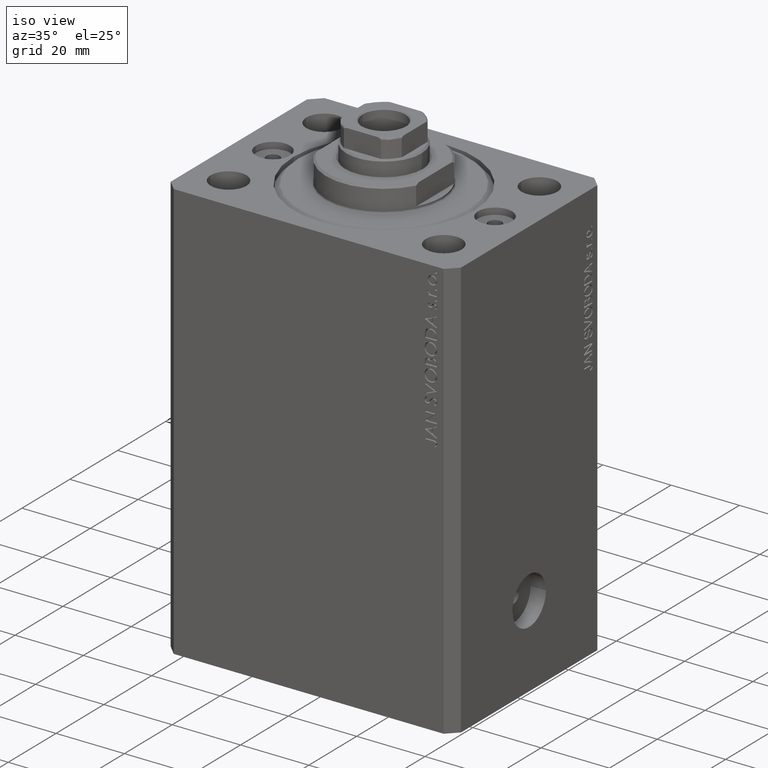
[diagram: clean part render]
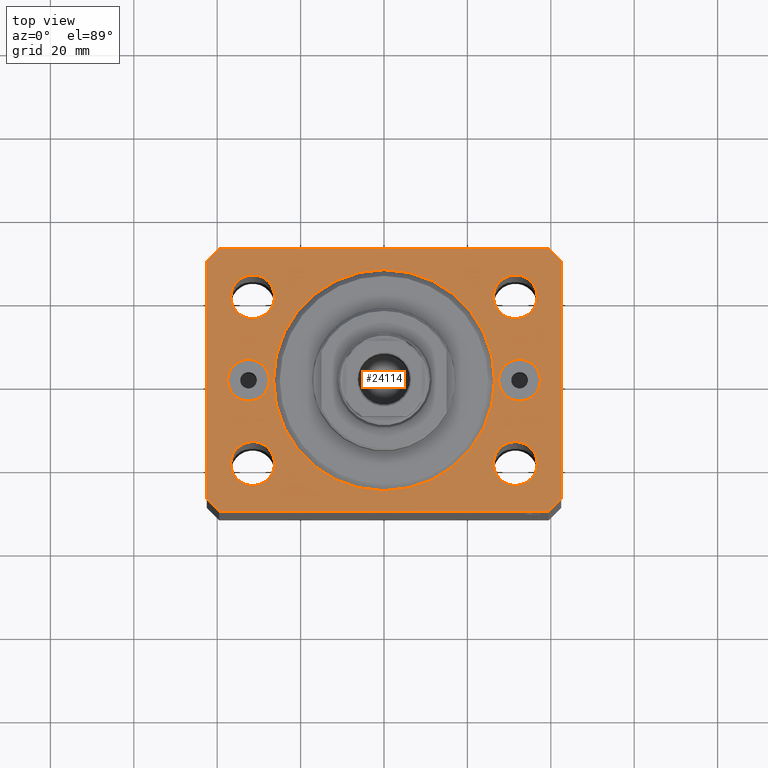
[diagram: tour spotlight — one face highlighted and labeled with its STEP entity id]
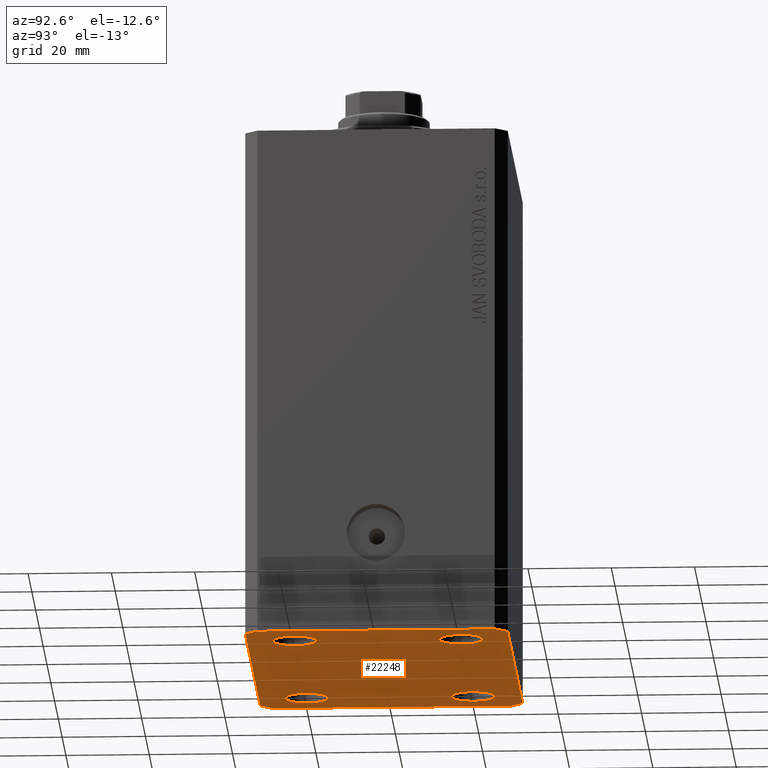
[diagram: tour spotlight — one face highlighted and labeled with its STEP entity id]
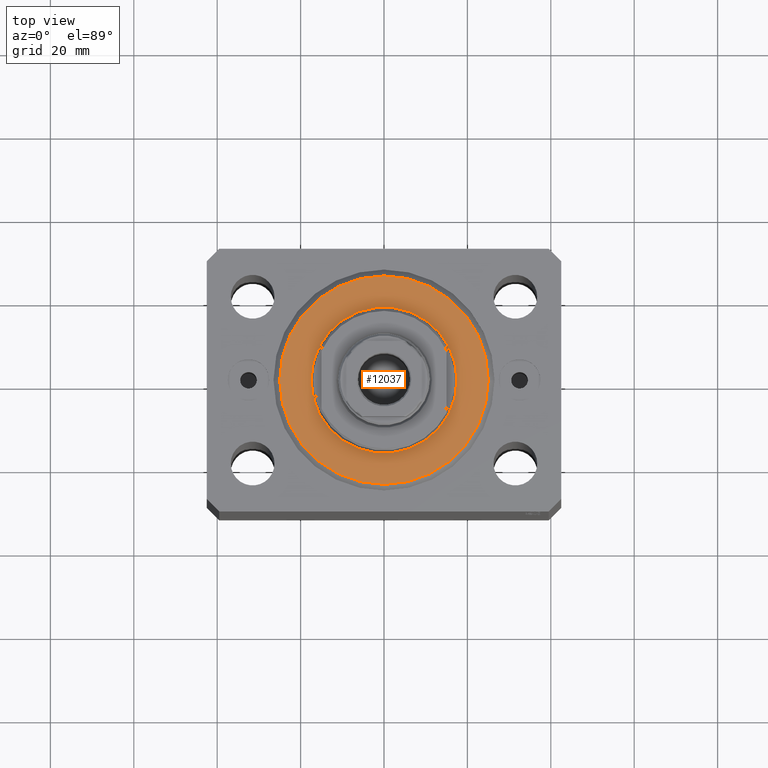
[diagram: tour spotlight — one face highlighted and labeled with its STEP entity id]
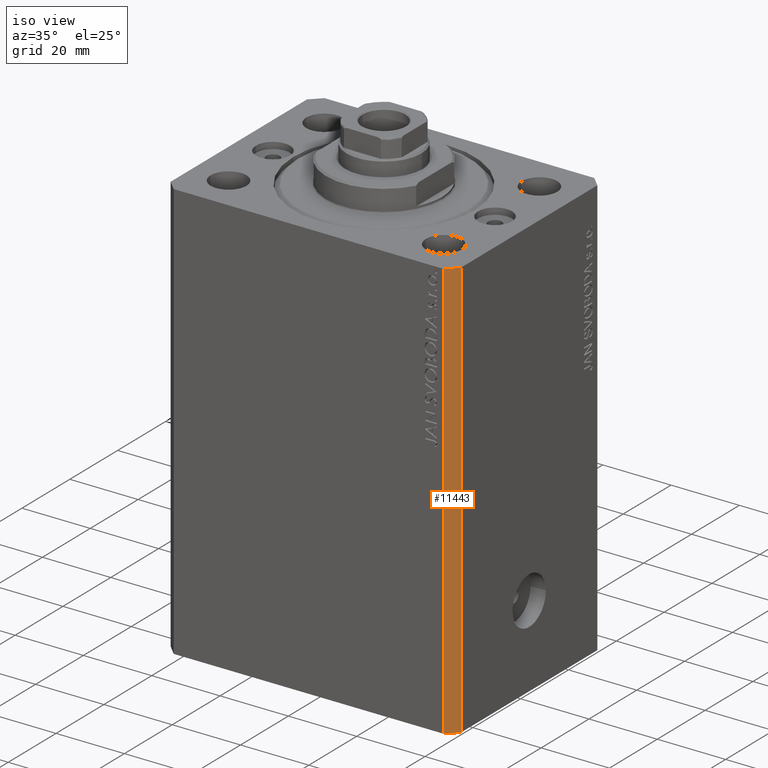
[diagram: tour spotlight — one face highlighted and labeled with its STEP entity id]
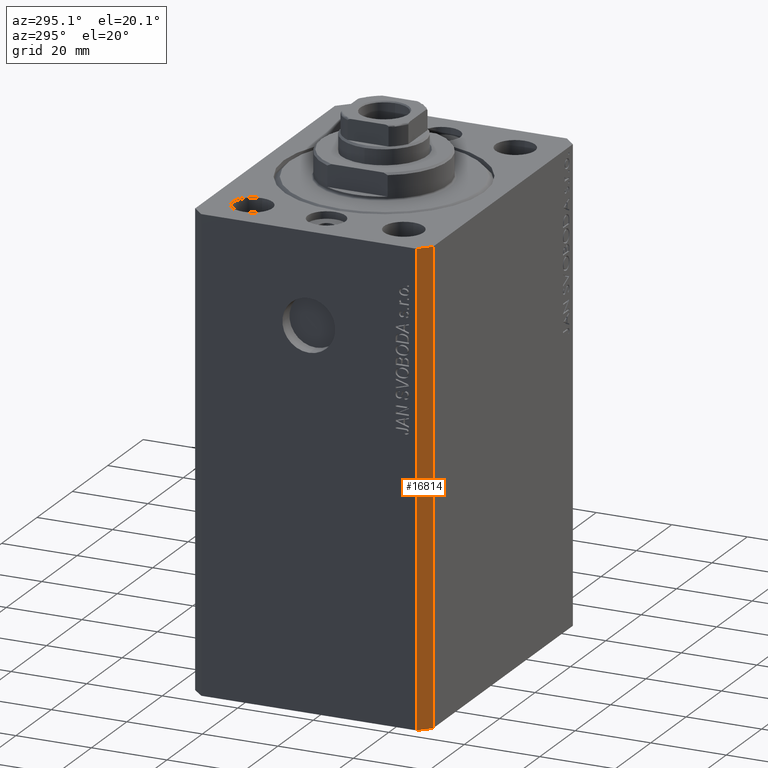
[diagram: tour spotlight — one face highlighted and labeled with its STEP entity id]
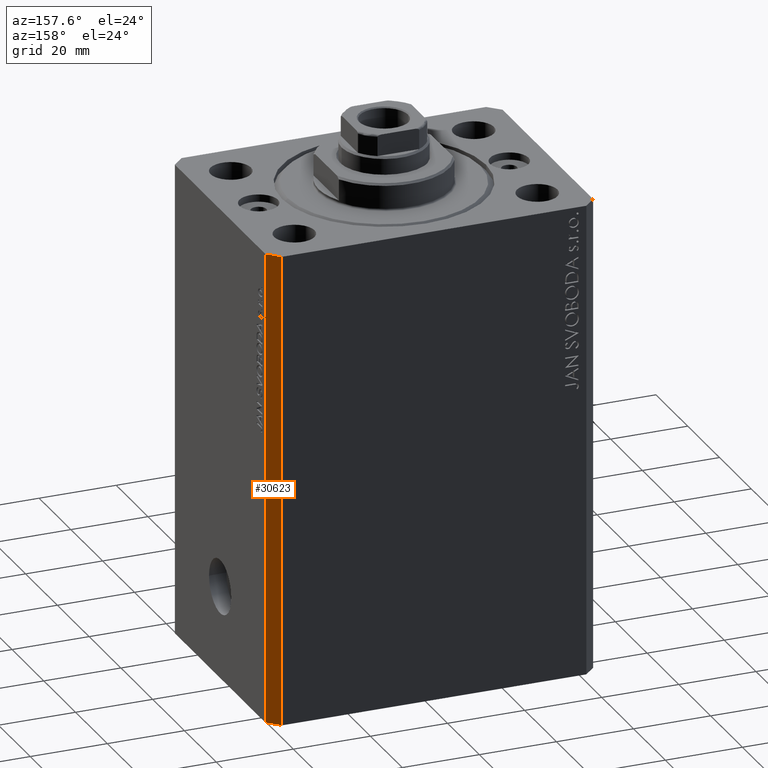
[diagram: tour spotlight — one face highlighted and labeled with its STEP entity id]
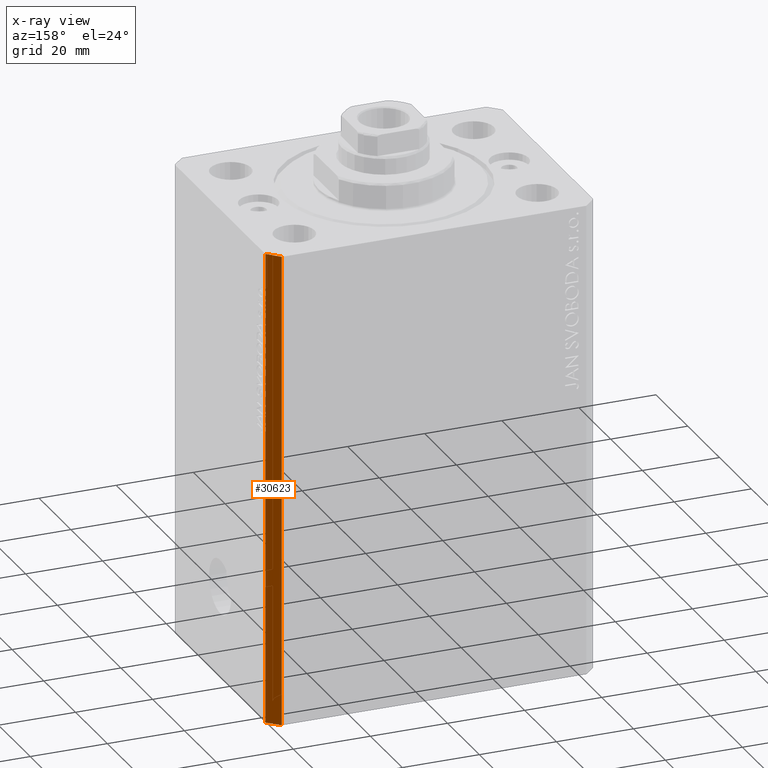
[diagram: x-ray of the same camera — body ghosted, this tour face saturated]
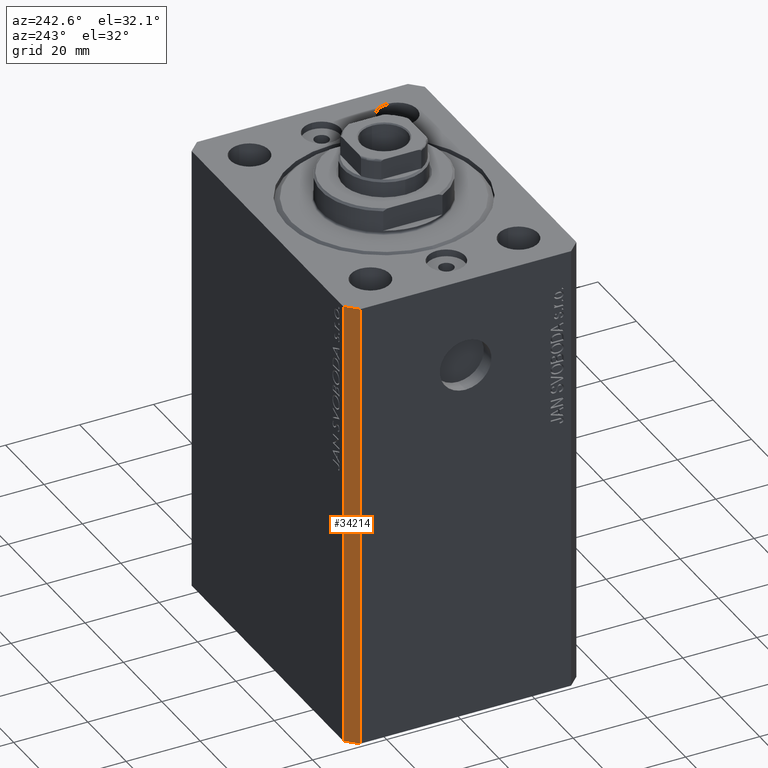
[diagram: tour spotlight — one face highlighted and labeled with its STEP entity id]
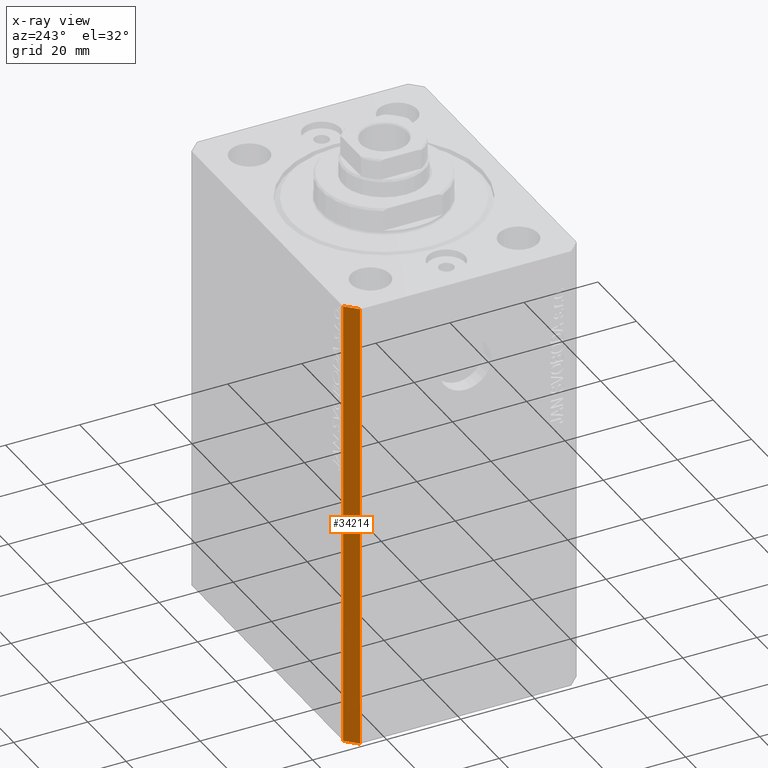
[diagram: x-ray of the same camera — body ghosted, this tour face saturated]
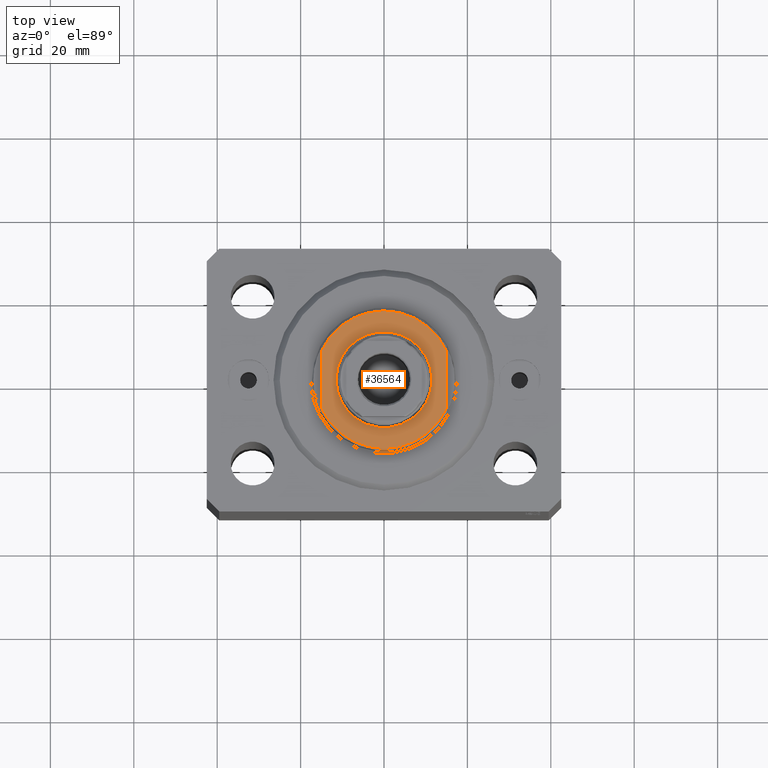
[diagram: tour spotlight — one face highlighted and labeled with its STEP entity id]
A machine part: a face-by-face anatomy tour. The part has 862 B-rep faces; the first image is the clean iso view, then the 8 largest visible faces are spotlighted one at a time (largest first), each with its STEP entity span.

Face 1 — top view, entity #24114. In plain terms, the highlighted planar face has unit normal (0, 0, 1).
Definition (entity closure, byte-faithful):
#117 = EDGE_CURVE ( 'NONE', #41312, #10861, #30344, .T. ) ;
#278 = VERTEX_POINT ( 'NONE', #11009 ) ;
#429 = VERTEX_POINT ( 'NONE', #5586 ) ;
#767 = EDGE_CURVE ( 'NONE', #945, #24552, #7454, .T. ) ;
#945 = VERTEX_POINT ( 'NONE', #40768 ) ;
#1809 = CARTESIAN_POINT ( 'NONE',  ( 42.50000000000051870, 28.49999999999995381, 0.000000000000000000 ) ) ;
#1871 = EDGE_CURVE ( 'NONE', #10861, #41312, #12650, .T. ) ;
#2034 = AXIS2_PLACEMENT_3D ( 'NONE', #25878, #36186, #30122 ) ;
#2293 = VERTEX_POINT ( 'NONE', #10389 ) ;
#2800 = ORIENTED_EDGE ( 'NONE', *, *, #40938, .T. ) ;
#2814 = EDGE_CURVE ( 'NONE', #29798, #27203, #41491, .T. ) ;
#2991 = CARTESIAN_POINT ( 'NONE',  ( 42.50000000000051870, 28.49999999999995381, 0.000000000000000000 ) ) ;
#3012 = EDGE_LOOP ( 'NONE', ( #42260, #13177 ) ) ;
#3289 = CIRCLE ( 'NONE', #34083, 26.50000000000000355 ) ;
#3389 = CARTESIAN_POINT ( 'NONE',  ( -31.49999999999999289, -20.00000000000000355, 0.000000000000000000 ) ) ;
#3461 = VERTEX_POINT ( 'NONE', #21788 ) ;
#3954 = VECTOR ( 'NONE', #35687, 1000.000000000000000 ) ;
#4182 = CARTESIAN_POINT ( 'NONE',  ( 32.50000000000000000, 0.000000000000000000, 0.000000000000000000 ) ) ;
#4458 = AXIS2_PLACEMENT_3D ( 'NONE', #36016, #35359, #18563 ) ;
#4481 = ORIENTED_EDGE ( 'NONE', *, *, #1871, .F. ) ;
#4549 = AXIS2_PLACEMENT_3D ( 'NONE', #11721, #25399, #35919 ) ;
#4614 = CIRCLE ( 'NONE', #8214, 4.999999999999997335 ) ;
#4627 = FACE_BOUND ( 'NONE', #28524, .T. ) ;
#5068 = FACE_BOUND ( 'NONE', #7280, .T. ) ;
#5298 = FACE_BOUND ( 'NONE', #36546, .T. ) ;
#5586 = CARTESIAN_POINT ( 'NONE',  ( -27.50000000000000000, 0.000000000000000000, 0.000000000000000000 ) ) ;
#5654 = EDGE_CURVE ( 'NONE', #7782, #429, #44275, .T. ) ;
#5735 = EDGE_LOOP ( 'NONE', ( #11829, #23599 ) ) ;
#6014 = DIRECTION ( 'NONE',  ( 0.000000000000000000, 0.000000000000000000, 1.000000000000000000 ) ) ;
#6097 = VECTOR ( 'NONE', #42563, 1000.000000000000000 ) ;
#6652 = AXIS2_PLACEMENT_3D ( 'NONE', #22149, #22368, #11848 ) ;
#6738 = DIRECTION ( 'NONE',  ( 1.000000000000000000, 0.000000000000000000, 0.000000000000000000 ) ) ;
#6810 = DIRECTION ( 'NONE',  ( 1.000000000000000000, 0.000000000000000000, 0.000000000000000000 ) ) ;
#6849 = DIRECTION ( 'NONE',  ( 0.000000000000000000, 0.000000000000000000, 1.000000000000000000 ) ) ;
#7097 = CIRCLE ( 'NONE', #31450, 5.250000000000000888 ) ;
#7280 = EDGE_LOOP ( 'NONE', ( #21650, #16932 ) ) ;
#7454 = CIRCLE ( 'NONE', #33965, 5.250000000000000888 ) ;
#7642 = ORIENTED_EDGE ( 'NONE', *, *, #5654, .F. ) ;
#7782 = VERTEX_POINT ( 'NONE', #25944 ) ;
#7810 = LINE ( 'NONE', #38968, #6097 ) ;
#8214 = AXIS2_PLACEMENT_3D ( 'NONE', #4182, #17893, #11159 ) ;
#8233 = VERTEX_POINT ( 'NONE', #40465 ) ;
#8416 = CARTESIAN_POINT ( 'NONE',  ( 37.50000000000000000, 0.000000000000000000, 0.000000000000000000 ) ) ;
#8446 = FACE_BOUND ( 'NONE', #3012, .T. ) ;
#9101 = LINE ( 'NONE', #16056, #18155 ) ;
#10264 = ORIENTED_EDGE ( 'NONE', *, *, #20903, .T. ) ;
#10350 = VECTOR ( 'NONE', #16167, 1000.000000000000000 ) ;
#10389 = CARTESIAN_POINT ( 'NONE',  ( 36.75000000000000000, 19.99999999999999289, 0.000000000000000000 ) ) ;
#10551 = ORIENTED_EDGE ( 'NONE', *, *, #767, .F. ) ;
#10684 = CARTESIAN_POINT ( 'NONE',  ( -42.50000000000000000, -28.50000000000000000, 0.000000000000000000 ) ) ;
#10834 = LINE ( 'NONE', #25160, #3954 ) ;
#10861 = VERTEX_POINT ( 'NONE', #37159 ) ;
#11009 = CARTESIAN_POINT ( 'NONE',  ( -39.50000000000000711, 31.50000000000000000, 0.000000000000000000 ) ) ;
#11102 = CARTESIAN_POINT ( 'NONE',  ( 0.000000000000000000, 0.000000000000000000, 0.000000000000000000 ) ) ;
#11159 = DIRECTION ( 'NONE',  ( 1.000000000000000000, 0.000000000000000000, 0.000000000000000000 ) ) ;
#11721 = CARTESIAN_POINT ( 'NONE',  ( 31.49999999999999289, -20.00000000000000355, 0.000000000000000000 ) ) ;
#11826 = FACE_BOUND ( 'NONE', #5735, .T. ) ;
#11829 = ORIENTED_EDGE ( 'NONE', *, *, #25767, .F. ) ;
#11848 = DIRECTION ( 'NONE',  ( 1.000000000000000000, 0.000000000000000000, 0.000000000000000000 ) ) ;
#11930 = ORIENTED_EDGE ( 'NONE', *, *, #40132, .T. ) ;
#11946 = EDGE_CURVE ( 'NONE', #42601, #29798, #28539, .T. ) ;
#12650 = CIRCLE ( 'NONE', #27699, 5.249999999999997335 ) ;
#13094 = VERTEX_POINT ( 'NONE', #42036 ) ;
#13177 = ORIENTED_EDGE ( 'NONE', *, *, #39728, .F. ) ;
#13205 = EDGE_CURVE ( 'NONE', #25222, #15008, #16378, .T. ) ;
#13921 = EDGE_CURVE ( 'NONE', #24552, #945, #7097, .T. ) ;
#13947 = DIRECTION ( 'NONE',  ( 0.000000000000000000, 0.000000000000000000, 1.000000000000000000 ) ) ;
#14310 = CARTESIAN_POINT ( 'NONE',  ( -26.24999999999999289, -20.00000000000000355, 0.000000000000000000 ) ) ;
#14994 = ORIENTED_EDGE ( 'NONE', *, *, #22914, .T. ) ;
#15008 = VERTEX_POINT ( 'NONE', #8416 ) ;
#15024 = EDGE_LOOP ( 'NONE', ( #4481, #23746 ) ) ;
#15578 = CARTESIAN_POINT ( 'NONE',  ( 27.50000000000000355, 6.123233995736762338E-16, 0.000000000000000000 ) ) ;
#15944 = CARTESIAN_POINT ( 'NONE',  ( -32.50000000000000000, 0.000000000000000000, 0.000000000000000000 ) ) ;
#15992 = CARTESIAN_POINT ( 'NONE',  ( -31.49999999999999289, -20.00000000000000355, 0.000000000000000000 ) ) ;
#16056 = CARTESIAN_POINT ( 'NONE',  ( 39.50000000000056843, 31.49999999999999289, 0.000000000000000000 ) ) ;
#16096 = AXIS2_PLACEMENT_3D ( 'NONE', #15992, #40434, #33690 ) ;
#16167 = DIRECTION ( 'NONE',  ( -0.7071067811865471286, -0.7071067811865479058, 0.000000000000000000 ) ) ;
#16378 = CIRCLE ( 'NONE', #2034, 4.999999999999997335 ) ;
#16932 = ORIENTED_EDGE ( 'NONE', *, *, #22277, .F. ) ;
#17893 = DIRECTION ( 'NONE',  ( 0.000000000000000000, -0.000000000000000000, -1.000000000000000000 ) ) ;
#18155 = VECTOR ( 'NONE', #22123, 1000.000000000000000 ) ;
#18197 = CIRCLE ( 'NONE', #29641, 26.50000000000000355 ) ;
#18347 = PLANE ( 'NONE',  #4458 ) ;
#18404 = CARTESIAN_POINT ( 'NONE',  ( -26.25000000000000000, 19.99999999999999645, 0.000000000000000000 ) ) ;
#18563 = DIRECTION ( 'NONE',  ( 1.000000000000000000, 0.000000000000000000, -0.000000000000000000 ) ) ;
#19085 = CARTESIAN_POINT ( 'NONE',  ( 31.50000000000000000, 19.99999999999999289, 0.000000000000000000 ) ) ;
#19226 = FACE_BOUND ( 'NONE', #15024, .T. ) ;
#19239 = VERTEX_POINT ( 'NONE', #21871 ) ;
#19425 = DIRECTION ( 'NONE',  ( 0.000000000000000000, 0.000000000000000000, 1.000000000000000000 ) ) ;
#19719 = DIRECTION ( 'NONE',  ( 1.000000000000000000, 0.000000000000000000, 0.000000000000000000 ) ) ;
#19849 = ORIENTED_EDGE ( 'NONE', *, *, #13205, .T. ) ;
#20183 = DIRECTION ( 'NONE',  ( 0.000000000000000000, 0.000000000000000000, 1.000000000000000000 ) ) ;
#20207 = DIRECTION ( 'NONE',  ( 0.000000000000000000, 0.000000000000000000, 1.000000000000000000 ) ) ;
#20770 = VERTEX_POINT ( 'NONE', #14310 ) ;
#20903 = EDGE_CURVE ( 'NONE', #3461, #278, #9101, .T. ) ;
#21251 = VECTOR ( 'NONE', #24437, 1000.000000000000000 ) ;
#21635 = CARTESIAN_POINT ( 'NONE',  ( 39.50000000000000711, -31.50000000000000000, 0.000000000000000000 ) ) ;
#21650 = ORIENTED_EDGE ( 'NONE', *, *, #44156, .F. ) ;
#21788 = CARTESIAN_POINT ( 'NONE',  ( 39.50000000000056843, 31.49999999999999289, 0.000000000000000000 ) ) ;
#21871 = CARTESIAN_POINT ( 'NONE',  ( -36.74999999999999289, -20.00000000000000355, 0.000000000000000000 ) ) ;
#22123 = DIRECTION ( 'NONE',  ( -1.000000000000000000, 8.783410004945795812E-17, 0.000000000000000000 ) ) ;
#22149 = CARTESIAN_POINT ( 'NONE',  ( 31.50000000000000000, 19.99999999999999289, 0.000000000000000000 ) ) ;
#22277 = EDGE_CURVE ( 'NONE', #43147, #8233, #18197, .T. ) ;
#22368 = DIRECTION ( 'NONE',  ( 0.000000000000000000, 0.000000000000000000, 1.000000000000000000 ) ) ;
#22474 = DIRECTION ( 'NONE',  ( 0.7071067811865483499, 0.7071067811865466846, 0.000000000000000000 ) ) ;
#22914 = EDGE_CURVE ( 'NONE', #278, #43212, #44189, .T. ) ;
#23354 = LINE ( 'NONE', #37020, #41719 ) ;
#23445 = CARTESIAN_POINT ( 'NONE',  ( 31.49999999999999289, -20.00000000000000355, 0.000000000000000000 ) ) ;
#23599 = ORIENTED_EDGE ( 'NONE', *, *, #35025, .F. ) ;
#23746 = ORIENTED_EDGE ( 'NONE', *, *, #117, .F. ) ;
#23860 = CARTESIAN_POINT ( 'NONE',  ( 0.000000000000000000, 0.000000000000000000, 0.000000000000000000 ) ) ;
#24114 = ADVANCED_FACE ( 'NONE', ( #32874, #5298, #11826, #19226, #8446, #5068, #4627, #38719 ), #18347, .T. ) ;
#24396 = EDGE_CURVE ( 'NONE', #43212, #24921, #23354, .T. ) ;
#24437 = DIRECTION ( 'NONE',  ( 8.886653596232072440E-15, 1.000000000000000000, 0.000000000000000000 ) ) ;
#24530 = ORIENTED_EDGE ( 'NONE', *, *, #27596, .F. ) ;
#24552 = VERTEX_POINT ( 'NONE', #18404 ) ;
#24921 = VERTEX_POINT ( 'NONE', #10684 ) ;
#25160 = CARTESIAN_POINT ( 'NONE',  ( -39.50000000000000711, -31.50000000000000000, 0.000000000000000000 ) ) ;
#25222 = VERTEX_POINT ( 'NONE', #15578 ) ;
#25271 = CIRCLE ( 'NONE', #6652, 5.249999999999997335 ) ;
#25399 = DIRECTION ( 'NONE',  ( 0.000000000000000000, 0.000000000000000000, 1.000000000000000000 ) ) ;
#25767 = EDGE_CURVE ( 'NONE', #2293, #32875, #32416, .T. ) ;
#25878 = CARTESIAN_POINT ( 'NONE',  ( 32.50000000000000000, 0.000000000000000000, 0.000000000000000000 ) ) ;
#25944 = CARTESIAN_POINT ( 'NONE',  ( -37.50000000000000000, 6.123233995736768255E-16, 0.000000000000000000 ) ) ;
#26009 = DIRECTION ( 'NONE',  ( 1.000000000000000000, 0.000000000000000000, 0.000000000000000000 ) ) ;
#26074 = CIRCLE ( 'NONE', #42546, 5.000000000000000888 ) ;
#26399 = CARTESIAN_POINT ( 'NONE',  ( -31.50000000000000000, 19.99999999999999645, 0.000000000000000000 ) ) ;
#26675 = CARTESIAN_POINT ( 'NONE',  ( -32.50000000000000000, 0.000000000000000000, 0.000000000000000000 ) ) ;
#27203 = VERTEX_POINT ( 'NONE', #1809 ) ;
#27596 = EDGE_CURVE ( 'NONE', #429, #7782, #26074, .T. ) ;
#27699 = AXIS2_PLACEMENT_3D ( 'NONE', #23445, #19425, #36452 ) ;
#28020 = CARTESIAN_POINT ( 'NONE',  ( 42.50000000000000711, -28.50000000000000355, 0.000000000000000000 ) ) ;
#28412 = EDGE_CURVE ( 'NONE', #27203, #3461, #33707, .T. ) ;
#28524 = EDGE_LOOP ( 'NONE', ( #24530, #7642 ) ) ;
#28539 = LINE ( 'NONE', #32325, #36382 ) ;
#29641 = AXIS2_PLACEMENT_3D ( 'NONE', #23860, #37533, #6810 ) ;
#29753 = DIRECTION ( 'NONE',  ( 0.000000000000000000, 0.000000000000000000, 1.000000000000000000 ) ) ;
#29798 = VERTEX_POINT ( 'NONE', #41676 ) ;
#30122 = DIRECTION ( 'NONE',  ( 1.000000000000000000, 0.000000000000000000, 0.000000000000000000 ) ) ;
#30275 = CARTESIAN_POINT ( 'NONE',  ( 26.25000000000000355, 19.99999999999999289, 0.000000000000000000 ) ) ;
#30285 = CARTESIAN_POINT ( 'NONE',  ( 26.24999999999999645, -20.00000000000000355, 0.000000000000000000 ) ) ;
#30344 = CIRCLE ( 'NONE', #4549, 5.249999999999997335 ) ;
#31055 = DIRECTION ( 'NONE',  ( 1.000000000000000000, 0.000000000000000000, 0.000000000000000000 ) ) ;
#31450 = AXIS2_PLACEMENT_3D ( 'NONE', #36732, #6014, #19719 ) ;
#31952 = ORIENTED_EDGE ( 'NONE', *, *, #2814, .T. ) ;
#32325 = CARTESIAN_POINT ( 'NONE',  ( 39.50000000000000711, -31.50000000000000000, 0.000000000000000000 ) ) ;
#32416 = CIRCLE ( 'NONE', #36743, 5.249999999999997335 ) ;
#32532 = CIRCLE ( 'NONE', #16096, 5.250000000000000888 ) ;
#32874 = FACE_OUTER_BOUND ( 'NONE', #43867, .T. ) ;
#32875 = VERTEX_POINT ( 'NONE', #30275 ) ;
#33382 = DIRECTION ( 'NONE',  ( 0.000000000000000000, 0.000000000000000000, 1.000000000000000000 ) ) ;
#33612 = DIRECTION ( 'NONE',  ( 1.000000000000000000, 0.000000000000000000, 0.000000000000000000 ) ) ;
#33690 = DIRECTION ( 'NONE',  ( 1.000000000000000000, 0.000000000000000000, 0.000000000000000000 ) ) ;
#33707 = LINE ( 'NONE', #2991, #36072 ) ;
#33965 = AXIS2_PLACEMENT_3D ( 'NONE', #26399, #29753, #40751 ) ;
#34083 = AXIS2_PLACEMENT_3D ( 'NONE', #11102, #6849, #31055 ) ;
#34378 = ORIENTED_EDGE ( 'NONE', *, *, #24396, .T. ) ;
#35025 = EDGE_CURVE ( 'NONE', #32875, #2293, #25271, .T. ) ;
#35359 = DIRECTION ( 'NONE',  ( 0.000000000000000000, 0.000000000000000000, 1.000000000000000000 ) ) ;
#35596 = CARTESIAN_POINT ( 'NONE',  ( -42.50000000000000000, 28.50000000000000000, 0.000000000000000000 ) ) ;
#35687 = DIRECTION ( 'NONE',  ( 1.000000000000000000, 0.000000000000000000, 0.000000000000000000 ) ) ;
#35919 = DIRECTION ( 'NONE',  ( 1.000000000000000000, 0.000000000000000000, 0.000000000000000000 ) ) ;
#36016 = CARTESIAN_POINT ( 'NONE',  ( 0.000000000000000000, 0.000000000000000000, 0.000000000000000000 ) ) ;
#36072 = VECTOR ( 'NONE', #40680, 1000.000000000000114 ) ;
#36186 = DIRECTION ( 'NONE',  ( 0.000000000000000000, -0.000000000000000000, -1.000000000000000000 ) ) ;
#36250 = ORIENTED_EDGE ( 'NONE', *, *, #11946, .T. ) ;
#36382 = VECTOR ( 'NONE', #22474, 1000.000000000000000 ) ;
#36452 = DIRECTION ( 'NONE',  ( 1.000000000000000000, 0.000000000000000000, 0.000000000000000000 ) ) ;
#36546 = EDGE_LOOP ( 'NONE', ( #39988, #10551 ) ) ;
#36732 = CARTESIAN_POINT ( 'NONE',  ( -31.50000000000000000, 19.99999999999999645, 0.000000000000000000 ) ) ;
#36743 = AXIS2_PLACEMENT_3D ( 'NONE', #19085, #33382, #26009 ) ;
#37020 = CARTESIAN_POINT ( 'NONE',  ( -42.50000000000000000, 28.50000000000000000, 0.000000000000000000 ) ) ;
#37092 = AXIS2_PLACEMENT_3D ( 'NONE', #26675, #20183, #33612 ) ;
#37159 = CARTESIAN_POINT ( 'NONE',  ( 36.74999999999999289, -20.00000000000000355, 0.000000000000000000 ) ) ;
#37247 = DIRECTION ( 'NONE',  ( 0.000000000000000000, -1.000000000000000000, 0.000000000000000000 ) ) ;
#37533 = DIRECTION ( 'NONE',  ( 0.000000000000000000, 0.000000000000000000, 1.000000000000000000 ) ) ;
#37639 = AXIS2_PLACEMENT_3D ( 'NONE', #3389, #13947, #40858 ) ;
#37924 = ORIENTED_EDGE ( 'NONE', *, *, #28412, .T. ) ;
#38471 = EDGE_LOOP ( 'NONE', ( #11930, #19849 ) ) ;
#38719 = FACE_BOUND ( 'NONE', #38471, .T. ) ;
#38968 = CARTESIAN_POINT ( 'NONE',  ( -42.50000000000000000, -28.50000000000000000, 0.000000000000000000 ) ) ;
#39728 = EDGE_CURVE ( 'NONE', #19239, #20770, #32532, .T. ) ;
#39988 = ORIENTED_EDGE ( 'NONE', *, *, #13921, .F. ) ;
#40132 = EDGE_CURVE ( 'NONE', #15008, #25222, #4614, .T. ) ;
#40434 = DIRECTION ( 'NONE',  ( 0.000000000000000000, 0.000000000000000000, 1.000000000000000000 ) ) ;
#40465 = CARTESIAN_POINT ( 'NONE',  ( 26.50000000000000355, 0.000000000000000000, 0.000000000000000000 ) ) ;
#40512 = ORIENTED_EDGE ( 'NONE', *, *, #41129, .T. ) ;
#40680 = DIRECTION ( 'NONE',  ( -0.7071067811865364705, 0.7071067811865584529, 0.000000000000000000 ) ) ;
#40751 = DIRECTION ( 'NONE',  ( 1.000000000000000000, 0.000000000000000000, 0.000000000000000000 ) ) ;
#40768 = CARTESIAN_POINT ( 'NONE',  ( -36.75000000000000000, 19.99999999999999645, 0.000000000000000000 ) ) ;
#40858 = DIRECTION ( 'NONE',  ( 1.000000000000000000, 0.000000000000000000, 0.000000000000000000 ) ) ;
#40938 = EDGE_CURVE ( 'NONE', #24921, #13094, #7810, .T. ) ;
#41023 = CARTESIAN_POINT ( 'NONE',  ( -26.50000000000000355, 3.245314017740485765E-15, 0.000000000000000000 ) ) ;
#41129 = EDGE_CURVE ( 'NONE', #13094, #42601, #10834, .T. ) ;
#41312 = VERTEX_POINT ( 'NONE', #30285 ) ;
#41491 = LINE ( 'NONE', #28020, #21251 ) ;
#41676 = CARTESIAN_POINT ( 'NONE',  ( 42.50000000000000711, -28.50000000000000355, 0.000000000000000000 ) ) ;
#41719 = VECTOR ( 'NONE', #37247, 1000.000000000000000 ) ;
#42036 = CARTESIAN_POINT ( 'NONE',  ( -39.50000000000000711, -31.50000000000000000, 0.000000000000000000 ) ) ;
#42260 = ORIENTED_EDGE ( 'NONE', *, *, #42872, .F. ) ;
#42546 = AXIS2_PLACEMENT_3D ( 'NONE', #15944, #20207, #6738 ) ;
#42563 = DIRECTION ( 'NONE',  ( 0.7071067811865471286, -0.7071067811865479058, 0.000000000000000000 ) ) ;
#42601 = VERTEX_POINT ( 'NONE', #21635 ) ;
#42872 = EDGE_CURVE ( 'NONE', #20770, #19239, #43361, .T. ) ;
#43147 = VERTEX_POINT ( 'NONE', #41023 ) ;
#43212 = VERTEX_POINT ( 'NONE', #35596 ) ;
#43361 = CIRCLE ( 'NONE', #37639, 5.250000000000000888 ) ;
#43733 = CARTESIAN_POINT ( 'NONE',  ( -39.50000000000000711, 31.50000000000000000, 0.000000000000000000 ) ) ;
#43867 = EDGE_LOOP ( 'NONE', ( #10264, #14994, #34378, #2800, #40512, #36250, #31952, #37924 ) ) ;
#44156 = EDGE_CURVE ( 'NONE', #8233, #43147, #3289, .T. ) ;
#44189 = LINE ( 'NONE', #43733, #10350 ) ;
#44275 = CIRCLE ( 'NONE', #37092, 5.000000000000000888 ) ;

Face 2 — auxiliary view, entity #22248. In plain terms, the highlighted planar face has unit normal (0, 0, 1).
Definition (entity closure, byte-faithful):
#162 = VERTEX_POINT ( 'NONE', #12608 ) ;
#273 = AXIS2_PLACEMENT_3D ( 'NONE', #6134, #37303, #23413 ) ;
#572 = LINE ( 'NONE', #23681, #13608 ) ;
#623 = EDGE_CURVE ( 'NONE', #21821, #5796, #13905, .T. ) ;
#713 = VERTEX_POINT ( 'NONE', #28652 ) ;
#825 = DIRECTION ( 'NONE',  ( -0.000000000000000000, -0.000000000000000000, -1.000000000000000000 ) ) ;
#1760 = CARTESIAN_POINT ( 'NONE',  ( 39.50000000000000711, -31.50000000000000000, -123.0000000000000000 ) ) ;
#2219 = ORIENTED_EDGE ( 'NONE', *, *, #36544, .F. ) ;
#2781 = ORIENTED_EDGE ( 'NONE', *, *, #39416, .F. ) ;
#3518 = CARTESIAN_POINT ( 'NONE',  ( -31.49999999999999289, -20.00000000000000355, -123.0000000000000000 ) ) ;
#3561 = DIRECTION ( 'NONE',  ( -0.000000000000000000, -0.000000000000000000, -1.000000000000000000 ) ) ;
#3652 = FACE_OUTER_BOUND ( 'NONE', #5267, .T. ) ;
#3916 = DIRECTION ( 'NONE',  ( -0.7071067811865471286, -0.7071067811865479058, 0.000000000000000000 ) ) ;
#3981 = ORIENTED_EDGE ( 'NONE', *, *, #42781, .F. ) ;
#4385 = DIRECTION ( 'NONE',  ( -1.000000000000000000, 8.783410004945795812E-17, 0.000000000000000000 ) ) ;
#4806 = VECTOR ( 'NONE', #8070, 1000.000000000000000 ) ;
#4964 = CIRCLE ( 'NONE', #8561, 5.249999999999997335 ) ;
#5150 = ORIENTED_EDGE ( 'NONE', *, *, #33067, .F. ) ;
#5267 = EDGE_LOOP ( 'NONE', ( #2781, #2219, #31370, #34153, #9568, #37391, #7975, #19262 ) ) ;
#5322 = CARTESIAN_POINT ( 'NONE',  ( -42.50000000000000000, -28.50000000000000000, -123.0000000000000000 ) ) ;
#5465 = ORIENTED_EDGE ( 'NONE', *, *, #36068, .F. ) ;
#5497 = EDGE_CURVE ( 'NONE', #11952, #22638, #35655, .T. ) ;
#5796 = VERTEX_POINT ( 'NONE', #34501 ) ;
#5980 = VECTOR ( 'NONE', #25272, 1000.000000000000000 ) ;
#6134 = CARTESIAN_POINT ( 'NONE',  ( 0.000000000000000000, 0.000000000000000000, -123.0000000000000000 ) ) ;
#7115 = DIRECTION ( 'NONE',  ( 1.000000000000000000, 0.000000000000000000, 0.000000000000000000 ) ) ;
#7463 = EDGE_LOOP ( 'NONE', ( #31733, #32184 ) ) ;
#7735 = ORIENTED_EDGE ( 'NONE', *, *, #15524, .F. ) ;
#7975 = ORIENTED_EDGE ( 'NONE', *, *, #27399, .F. ) ;
#8070 = DIRECTION ( 'NONE',  ( 1.000000000000000000, 0.000000000000000000, 0.000000000000000000 ) ) ;
#8114 = DIRECTION ( 'NONE',  ( -0.000000000000000000, -0.000000000000000000, -1.000000000000000000 ) ) ;
#8209 = LINE ( 'NONE', #15612, #33986 ) ;
#8561 = AXIS2_PLACEMENT_3D ( 'NONE', #18652, #21550, #38802 ) ;
#9038 = LINE ( 'NONE', #22721, #23887 ) ;
#9115 = CARTESIAN_POINT ( 'NONE',  ( -42.50000000000000000, 28.50000000000000000, -123.0000000000000000 ) ) ;
#9211 = VERTEX_POINT ( 'NONE', #35239 ) ;
#9266 = DIRECTION ( 'NONE',  ( 8.886653596232072440E-15, 1.000000000000000000, 0.000000000000000000 ) ) ;
#9568 = ORIENTED_EDGE ( 'NONE', *, *, #5497, .F. ) ;
#9736 = PLANE ( 'NONE',  #273 ) ;
#10461 = LINE ( 'NONE', #29967, #11146 ) ;
#10769 = EDGE_CURVE ( 'NONE', #39634, #11952, #19465, .T. ) ;
#10843 = CARTESIAN_POINT ( 'NONE',  ( 31.49999999999999289, -20.00000000000000355, -123.0000000000000000 ) ) ;
#11146 = VECTOR ( 'NONE', #43644, 1000.000000000000000 ) ;
#11321 = EDGE_CURVE ( 'NONE', #5796, #21821, #27817, .T. ) ;
#11651 = VERTEX_POINT ( 'NONE', #26191 ) ;
#11952 = VERTEX_POINT ( 'NONE', #29199 ) ;
#12356 = CIRCLE ( 'NONE', #41008, 5.249999999999997335 ) ;
#12608 = CARTESIAN_POINT ( 'NONE',  ( 26.25000000000000355, 19.99999999999999289, -123.0000000000000000 ) ) ;
#13608 = VECTOR ( 'NONE', #3916, 1000.000000000000000 ) ;
#13905 = CIRCLE ( 'NONE', #31081, 5.250000000000000888 ) ;
#13988 = EDGE_LOOP ( 'NONE', ( #7735, #5150 ) ) ;
#15402 = DIRECTION ( 'NONE',  ( -0.000000000000000000, -0.000000000000000000, -1.000000000000000000 ) ) ;
#15423 = AXIS2_PLACEMENT_3D ( 'NONE', #24251, #30967, #30751 ) ;
#15524 = EDGE_CURVE ( 'NONE', #16294, #162, #4964, .T. ) ;
#15612 = CARTESIAN_POINT ( 'NONE',  ( 39.50000000000056843, 31.49999999999999289, -123.0000000000000000 ) ) ;
#16032 = VECTOR ( 'NONE', #9266, 1000.000000000000000 ) ;
#16047 = CIRCLE ( 'NONE', #21763, 5.249999999999997335 ) ;
#16218 = LINE ( 'NONE', #39772, #16032 ) ;
#16264 = VERTEX_POINT ( 'NONE', #30557 ) ;
#16294 = VERTEX_POINT ( 'NONE', #41755 ) ;
#17240 = EDGE_CURVE ( 'NONE', #16264, #19732, #572, .T. ) ;
#17360 = FACE_BOUND ( 'NONE', #13988, .T. ) ;
#18652 = CARTESIAN_POINT ( 'NONE',  ( 31.50000000000000000, 19.99999999999999289, -123.0000000000000000 ) ) ;
#18706 = CARTESIAN_POINT ( 'NONE',  ( -31.50000000000000000, 19.99999999999999645, -123.0000000000000000 ) ) ;
#18843 = CARTESIAN_POINT ( 'NONE',  ( 39.50000000000056843, 31.49999999999999289, -123.0000000000000000 ) ) ;
#19262 = ORIENTED_EDGE ( 'NONE', *, *, #17240, .F. ) ;
#19465 = LINE ( 'NONE', #5322, #31382 ) ;
#19732 = VERTEX_POINT ( 'NONE', #22434 ) ;
#21550 = DIRECTION ( 'NONE',  ( -0.000000000000000000, -0.000000000000000000, -1.000000000000000000 ) ) ;
#21678 = DIRECTION ( 'NONE',  ( 1.000000000000000000, 0.000000000000000000, 0.000000000000000000 ) ) ;
#21763 = AXIS2_PLACEMENT_3D ( 'NONE', #10843, #8114, #41348 ) ;
#21821 = VERTEX_POINT ( 'NONE', #35353 ) ;
#22054 = CARTESIAN_POINT ( 'NONE',  ( -42.50000000000000000, -28.50000000000000000, -123.0000000000000000 ) ) ;
#22248 = ADVANCED_FACE ( 'NONE', ( #26549, #37078, #17360, #37747, #3652 ), #9736, .F. ) ;
#22257 = VERTEX_POINT ( 'NONE', #40683 ) ;
#22339 = EDGE_CURVE ( 'NONE', #32191, #713, #16047, .T. ) ;
#22384 = CARTESIAN_POINT ( 'NONE',  ( 26.24999999999999645, -20.00000000000000355, -123.0000000000000000 ) ) ;
#22434 = CARTESIAN_POINT ( 'NONE',  ( -42.50000000000000000, 28.50000000000000000, -123.0000000000000000 ) ) ;
#22638 = VERTEX_POINT ( 'NONE', #1760 ) ;
#22721 = CARTESIAN_POINT ( 'NONE',  ( 42.50000000000051870, 28.49999999999995381, -123.0000000000000000 ) ) ;
#23413 = DIRECTION ( 'NONE',  ( 1.000000000000000000, 0.000000000000000000, -0.000000000000000000 ) ) ;
#23681 = CARTESIAN_POINT ( 'NONE',  ( -39.50000000000000711, 31.50000000000000000, -123.0000000000000000 ) ) ;
#23716 = DIRECTION ( 'NONE',  ( 1.000000000000000000, 0.000000000000000000, 0.000000000000000000 ) ) ;
#23887 = VECTOR ( 'NONE', #36392, 1000.000000000000114 ) ;
#24251 = CARTESIAN_POINT ( 'NONE',  ( -31.49999999999999289, -20.00000000000000355, -123.0000000000000000 ) ) ;
#25272 = DIRECTION ( 'NONE',  ( 0.000000000000000000, -1.000000000000000000, 0.000000000000000000 ) ) ;
#26168 = LINE ( 'NONE', #9115, #5980 ) ;
#26191 = CARTESIAN_POINT ( 'NONE',  ( 42.50000000000000711, -28.50000000000000355, -123.0000000000000000 ) ) ;
#26549 = FACE_BOUND ( 'NONE', #33061, .T. ) ;
#27399 = EDGE_CURVE ( 'NONE', #19732, #39634, #26168, .T. ) ;
#27817 = CIRCLE ( 'NONE', #39973, 5.250000000000000888 ) ;
#27876 = ORIENTED_EDGE ( 'NONE', *, *, #623, .F. ) ;
#28652 = CARTESIAN_POINT ( 'NONE',  ( 36.74999999999999289, -20.00000000000000355, -123.0000000000000000 ) ) ;
#29199 = CARTESIAN_POINT ( 'NONE',  ( -39.50000000000000711, -31.50000000000000000, -123.0000000000000000 ) ) ;
#29329 = DIRECTION ( 'NONE',  ( 0.7071067811865471286, -0.7071067811865479058, 0.000000000000000000 ) ) ;
#29967 = CARTESIAN_POINT ( 'NONE',  ( 39.50000000000000711, -31.50000000000000000, -123.0000000000000000 ) ) ;
#30302 = AXIS2_PLACEMENT_3D ( 'NONE', #3518, #44119, #23716 ) ;
#30399 = AXIS2_PLACEMENT_3D ( 'NONE', #37836, #825, #7115 ) ;
#30557 = CARTESIAN_POINT ( 'NONE',  ( -39.50000000000000711, 31.50000000000000000, -123.0000000000000000 ) ) ;
#30751 = DIRECTION ( 'NONE',  ( 1.000000000000000000, 0.000000000000000000, 0.000000000000000000 ) ) ;
#30916 = DIRECTION ( 'NONE',  ( 1.000000000000000000, 0.000000000000000000, 0.000000000000000000 ) ) ;
#30967 = DIRECTION ( 'NONE',  ( -0.000000000000000000, -0.000000000000000000, -1.000000000000000000 ) ) ;
#31081 = AXIS2_PLACEMENT_3D ( 'NONE', #41251, #3561, #30916 ) ;
#31370 = ORIENTED_EDGE ( 'NONE', *, *, #37515, .F. ) ;
#31382 = VECTOR ( 'NONE', #29329, 1000.000000000000000 ) ;
#31733 = ORIENTED_EDGE ( 'NONE', *, *, #39369, .F. ) ;
#31897 = CIRCLE ( 'NONE', #15423, 5.250000000000000888 ) ;
#32069 = CARTESIAN_POINT ( 'NONE',  ( -39.50000000000000711, -31.50000000000000000, -123.0000000000000000 ) ) ;
#32184 = ORIENTED_EDGE ( 'NONE', *, *, #22339, .F. ) ;
#32191 = VERTEX_POINT ( 'NONE', #22384 ) ;
#32578 = DIRECTION ( 'NONE',  ( -0.000000000000000000, -0.000000000000000000, -1.000000000000000000 ) ) ;
#33061 = EDGE_LOOP ( 'NONE', ( #3981, #5465 ) ) ;
#33067 = EDGE_CURVE ( 'NONE', #162, #16294, #12356, .T. ) ;
#33986 = VECTOR ( 'NONE', #4385, 1000.000000000000000 ) ;
#34153 = ORIENTED_EDGE ( 'NONE', *, *, #42526, .F. ) ;
#34501 = CARTESIAN_POINT ( 'NONE',  ( -26.25000000000000000, 19.99999999999999645, -123.0000000000000000 ) ) ;
#35239 = CARTESIAN_POINT ( 'NONE',  ( 42.50000000000051870, 28.49999999999995381, -123.0000000000000000 ) ) ;
#35319 = CIRCLE ( 'NONE', #30302, 5.250000000000000888 ) ;
#35353 = CARTESIAN_POINT ( 'NONE',  ( -36.75000000000000000, 19.99999999999999645, -123.0000000000000000 ) ) ;
#35655 = LINE ( 'NONE', #32069, #4806 ) ;
#35938 = DIRECTION ( 'NONE',  ( 1.000000000000000000, 0.000000000000000000, 0.000000000000000000 ) ) ;
#36068 = EDGE_CURVE ( 'NONE', #37556, #22257, #35319, .T. ) ;
#36392 = DIRECTION ( 'NONE',  ( -0.7071067811865364705, 0.7071067811865584529, 0.000000000000000000 ) ) ;
#36544 = EDGE_CURVE ( 'NONE', #9211, #42198, #9038, .T. ) ;
#37078 = FACE_BOUND ( 'NONE', #7463, .T. ) ;
#37303 = DIRECTION ( 'NONE',  ( 0.000000000000000000, 0.000000000000000000, 1.000000000000000000 ) ) ;
#37391 = ORIENTED_EDGE ( 'NONE', *, *, #10769, .F. ) ;
#37515 = EDGE_CURVE ( 'NONE', #11651, #9211, #16218, .T. ) ;
#37556 = VERTEX_POINT ( 'NONE', #42687 ) ;
#37747 = FACE_BOUND ( 'NONE', #39732, .T. ) ;
#37836 = CARTESIAN_POINT ( 'NONE',  ( 31.49999999999999289, -20.00000000000000355, -123.0000000000000000 ) ) ;
#38802 = DIRECTION ( 'NONE',  ( 1.000000000000000000, 0.000000000000000000, 0.000000000000000000 ) ) ;
#38940 = CARTESIAN_POINT ( 'NONE',  ( 31.50000000000000000, 19.99999999999999289, -123.0000000000000000 ) ) ;
#39369 = EDGE_CURVE ( 'NONE', #713, #32191, #41171, .T. ) ;
#39416 = EDGE_CURVE ( 'NONE', #42198, #16264, #8209, .T. ) ;
#39634 = VERTEX_POINT ( 'NONE', #22054 ) ;
#39732 = EDGE_LOOP ( 'NONE', ( #40570, #27876 ) ) ;
#39772 = CARTESIAN_POINT ( 'NONE',  ( 42.50000000000000711, -28.50000000000000355, -123.0000000000000000 ) ) ;
#39973 = AXIS2_PLACEMENT_3D ( 'NONE', #18706, #32578, #35938 ) ;
#40570 = ORIENTED_EDGE ( 'NONE', *, *, #11321, .F. ) ;
#40683 = CARTESIAN_POINT ( 'NONE',  ( -26.24999999999999289, -20.00000000000000355, -123.0000000000000000 ) ) ;
#41008 = AXIS2_PLACEMENT_3D ( 'NONE', #38940, #15402, #21678 ) ;
#41171 = CIRCLE ( 'NONE', #30399, 5.249999999999997335 ) ;
#41251 = CARTESIAN_POINT ( 'NONE',  ( -31.50000000000000000, 19.99999999999999645, -123.0000000000000000 ) ) ;
#41348 = DIRECTION ( 'NONE',  ( 1.000000000000000000, 0.000000000000000000, 0.000000000000000000 ) ) ;
#41755 = CARTESIAN_POINT ( 'NONE',  ( 36.75000000000000000, 19.99999999999999289, -123.0000000000000000 ) ) ;
#42198 = VERTEX_POINT ( 'NONE', #18843 ) ;
#42526 = EDGE_CURVE ( 'NONE', #22638, #11651, #10461, .T. ) ;
#42687 = CARTESIAN_POINT ( 'NONE',  ( -36.74999999999999289, -20.00000000000000355, -123.0000000000000000 ) ) ;
#42781 = EDGE_CURVE ( 'NONE', #22257, #37556, #31897, .T. ) ;
#43644 = DIRECTION ( 'NONE',  ( 0.7071067811865483499, 0.7071067811865466846, 0.000000000000000000 ) ) ;
#44119 = DIRECTION ( 'NONE',  ( -0.000000000000000000, -0.000000000000000000, -1.000000000000000000 ) ) ;

Face 3 — top view, entity #12037. In plain terms, the highlighted planar face has unit normal (0, 0, -1).
Definition (entity closure, byte-faithful):
#254 = DIRECTION ( 'NONE',  ( 0.000000000000000000, 0.000000000000000000, 1.000000000000000000 ) ) ;
#263 = EDGE_CURVE ( 'NONE', #4688, #32085, #11018, .T. ) ;
#1205 = EDGE_CURVE ( 'NONE', #14976, #38003, #8272, .T. ) ;
#1691 = CARTESIAN_POINT ( 'NONE',  ( 24.99999999999995026, 0.000000000000000000, 0.000000000000000000 ) ) ;
#1694 = AXIS2_PLACEMENT_3D ( 'NONE', #42167, #254, #17749 ) ;
#1757 = CARTESIAN_POINT ( 'NONE',  ( -17.50000000000000000, 2.143131898507868643E-15, 2.168404344971008868E-16 ) ) ;
#4084 = EDGE_CURVE ( 'NONE', #32085, #4688, #11239, .T. ) ;
#4688 = VERTEX_POINT ( 'NONE', #34660 ) ;
#6135 = AXIS2_PLACEMENT_3D ( 'NONE', #26808, #33970, #30606 ) ;
#7855 = DIRECTION ( 'NONE',  ( -0.000000000000000000, -0.000000000000000000, -1.000000000000000000 ) ) ;
#8272 = CIRCLE ( 'NONE', #6135, 24.99999999999995026 ) ;
#8790 = CIRCLE ( 'NONE', #11640, 24.99999999999995026 ) ;
#11018 = CIRCLE ( 'NONE', #1694, 17.50000000000000000 ) ;
#11239 = CIRCLE ( 'NONE', #42752, 17.50000000000000000 ) ;
#11640 = AXIS2_PLACEMENT_3D ( 'NONE', #21325, #7855, #32066 ) ;
#12037 = ADVANCED_FACE ( 'NONE', ( #38834, #42657 ), #25838, .F. ) ;
#13106 = DIRECTION ( 'NONE',  ( 1.000000000000000000, 0.000000000000000000, 0.000000000000000000 ) ) ;
#14861 = DIRECTION ( 'NONE',  ( 0.000000000000000000, 0.000000000000000000, 1.000000000000000000 ) ) ;
#14976 = VERTEX_POINT ( 'NONE', #1691 ) ;
#16472 = DIRECTION ( 'NONE',  ( 0.000000000000000000, 0.000000000000000000, 1.000000000000000000 ) ) ;
#17749 = DIRECTION ( 'NONE',  ( 1.000000000000000000, 0.000000000000000000, 0.000000000000000000 ) ) ;
#17810 = AXIS2_PLACEMENT_3D ( 'NONE', #42003, #14861, #32114 ) ;
#19840 = CARTESIAN_POINT ( 'NONE',  ( 0.000000000000000000, 0.000000000000000000, 0.000000000000000000 ) ) ;
#21325 = CARTESIAN_POINT ( 'NONE',  ( 0.000000000000000000, 0.000000000000000000, 0.000000000000000000 ) ) ;
#25838 = PLANE ( 'NONE',  #17810 ) ;
#26808 = CARTESIAN_POINT ( 'NONE',  ( 0.000000000000000000, 0.000000000000000000, 0.000000000000000000 ) ) ;
#27382 = EDGE_LOOP ( 'NONE', ( #39621, #40679 ) ) ;
#30606 = DIRECTION ( 'NONE',  ( 1.000000000000000000, 0.000000000000000000, 0.000000000000000000 ) ) ;
#32066 = DIRECTION ( 'NONE',  ( 1.000000000000000000, 0.000000000000000000, 0.000000000000000000 ) ) ;
#32085 = VERTEX_POINT ( 'NONE', #1757 ) ;
#32114 = DIRECTION ( 'NONE',  ( 1.000000000000000000, 0.000000000000000000, -0.000000000000000000 ) ) ;
#33970 = DIRECTION ( 'NONE',  ( -0.000000000000000000, -0.000000000000000000, -1.000000000000000000 ) ) ;
#34573 = EDGE_CURVE ( 'NONE', #38003, #14976, #8790, .T. ) ;
#34660 = CARTESIAN_POINT ( 'NONE',  ( 17.50000000000000000, 0.000000000000000000, 2.168404344971008868E-16 ) ) ;
#35152 = EDGE_LOOP ( 'NONE', ( #37234, #43611 ) ) ;
#37234 = ORIENTED_EDGE ( 'NONE', *, *, #263, .T. ) ;
#38003 = VERTEX_POINT ( 'NONE', #41269 ) ;
#38834 = FACE_BOUND ( 'NONE', #35152, .T. ) ;
#39621 = ORIENTED_EDGE ( 'NONE', *, *, #1205, .T. ) ;
#40679 = ORIENTED_EDGE ( 'NONE', *, *, #34573, .T. ) ;
#41269 = CARTESIAN_POINT ( 'NONE',  ( -24.99999999999995026, 3.153465507804431248E-15, 0.000000000000000000 ) ) ;
#42003 = CARTESIAN_POINT ( 'NONE',  ( 0.000000000000000000, 0.000000000000000000, 0.000000000000000000 ) ) ;
#42167 = CARTESIAN_POINT ( 'NONE',  ( 0.000000000000000000, 0.000000000000000000, 0.000000000000000000 ) ) ;
#42657 = FACE_OUTER_BOUND ( 'NONE', #27382, .T. ) ;
#42752 = AXIS2_PLACEMENT_3D ( 'NONE', #19840, #16472, #13106 ) ;
#43611 = ORIENTED_EDGE ( 'NONE', *, *, #4084, .T. ) ;

Face 4 — iso view, entity #11443. In plain terms, the highlighted planar face has unit normal (0.7071, -0.7071, 0).
Definition (entity closure, byte-faithful):
#866 = DIRECTION ( 'NONE',  ( 0.7071067811865483499, 0.7071067811865467956, 0.000000000000000000 ) ) ;
#1760 = CARTESIAN_POINT ( 'NONE',  ( 39.50000000000000711, -31.50000000000000000, -123.0000000000000000 ) ) ;
#4026 = ORIENTED_EDGE ( 'NONE', *, *, #42526, .T. ) ;
#5359 = CARTESIAN_POINT ( 'NONE',  ( 39.50000000000000711, -31.50000000000000000, -123.0000000000000000 ) ) ;
#10461 = LINE ( 'NONE', #29967, #11146 ) ;
#11146 = VECTOR ( 'NONE', #43644, 1000.000000000000000 ) ;
#11443 = ADVANCED_FACE ( 'NONE', ( #34293 ), #31579, .T. ) ;
#11651 = VERTEX_POINT ( 'NONE', #26191 ) ;
#11946 = EDGE_CURVE ( 'NONE', #42601, #29798, #28539, .T. ) ;
#14067 = VECTOR ( 'NONE', #40937, 1000.000000000000000 ) ;
#17683 = EDGE_CURVE ( 'NONE', #22638, #42601, #25554, .T. ) ;
#18942 = VECTOR ( 'NONE', #29360, 1000.000000000000000 ) ;
#19573 = ORIENTED_EDGE ( 'NONE', *, *, #11946, .F. ) ;
#20847 = CARTESIAN_POINT ( 'NONE',  ( 39.50000000000000711, -31.50000000000000000, -123.0000000000000000 ) ) ;
#21635 = CARTESIAN_POINT ( 'NONE',  ( 39.50000000000000711, -31.50000000000000000, 0.000000000000000000 ) ) ;
#22474 = DIRECTION ( 'NONE',  ( 0.7071067811865483499, 0.7071067811865466846, 0.000000000000000000 ) ) ;
#22638 = VERTEX_POINT ( 'NONE', #1760 ) ;
#25554 = LINE ( 'NONE', #5359, #18942 ) ;
#25679 = ORIENTED_EDGE ( 'NONE', *, *, #44236, .T. ) ;
#26191 = CARTESIAN_POINT ( 'NONE',  ( 42.50000000000000711, -28.50000000000000355, -123.0000000000000000 ) ) ;
#27263 = CARTESIAN_POINT ( 'NONE',  ( 42.50000000000000711, -28.50000000000000355, -123.0000000000000000 ) ) ;
#27801 = DIRECTION ( 'NONE',  ( 0.7071067811865467956, -0.7071067811865483499, 0.000000000000000000 ) ) ;
#28539 = LINE ( 'NONE', #32325, #36382 ) ;
#29360 = DIRECTION ( 'NONE',  ( 0.000000000000000000, 0.000000000000000000, 1.000000000000000000 ) ) ;
#29798 = VERTEX_POINT ( 'NONE', #41676 ) ;
#29967 = CARTESIAN_POINT ( 'NONE',  ( 39.50000000000000711, -31.50000000000000000, -123.0000000000000000 ) ) ;
#30617 = LINE ( 'NONE', #27263, #14067 ) ;
#31579 = PLANE ( 'NONE',  #40691 ) ;
#32325 = CARTESIAN_POINT ( 'NONE',  ( 39.50000000000000711, -31.50000000000000000, 0.000000000000000000 ) ) ;
#34293 = FACE_OUTER_BOUND ( 'NONE', #41912, .T. ) ;
#36382 = VECTOR ( 'NONE', #22474, 1000.000000000000000 ) ;
#38464 = ORIENTED_EDGE ( 'NONE', *, *, #17683, .F. ) ;
#40691 = AXIS2_PLACEMENT_3D ( 'NONE', #20847, #27801, #866 ) ;
#40937 = DIRECTION ( 'NONE',  ( 0.000000000000000000, 0.000000000000000000, 1.000000000000000000 ) ) ;
#41676 = CARTESIAN_POINT ( 'NONE',  ( 42.50000000000000711, -28.50000000000000355, 0.000000000000000000 ) ) ;
#41912 = EDGE_LOOP ( 'NONE', ( #19573, #38464, #4026, #25679 ) ) ;
#42526 = EDGE_CURVE ( 'NONE', #22638, #11651, #10461, .T. ) ;
#42601 = VERTEX_POINT ( 'NONE', #21635 ) ;
#43644 = DIRECTION ( 'NONE',  ( 0.7071067811865483499, 0.7071067811865466846, 0.000000000000000000 ) ) ;
#44236 = EDGE_CURVE ( 'NONE', #11651, #29798, #30617, .T. ) ;

Face 5 — auxiliary view, entity #16814. In plain terms, the highlighted planar face has unit normal (-0.7071, -0.7071, 0).
Definition (entity closure, byte-faithful):
#250 = LINE ( 'NONE', #21523, #41703 ) ;
#405 = DIRECTION ( 'NONE',  ( -0.7071067811865479058, -0.7071067811865472397, 0.000000000000000000 ) ) ;
#698 = VECTOR ( 'NONE', #9306, 1000.000000000000000 ) ;
#1011 = ORIENTED_EDGE ( 'NONE', *, *, #15016, .T. ) ;
#5322 = CARTESIAN_POINT ( 'NONE',  ( -42.50000000000000000, -28.50000000000000000, -123.0000000000000000 ) ) ;
#6097 = VECTOR ( 'NONE', #42563, 1000.000000000000000 ) ;
#7810 = LINE ( 'NONE', #38968, #6097 ) ;
#9301 = AXIS2_PLACEMENT_3D ( 'NONE', #13199, #405, #23506 ) ;
#9306 = DIRECTION ( 'NONE',  ( 0.000000000000000000, 0.000000000000000000, 1.000000000000000000 ) ) ;
#9525 = CARTESIAN_POINT ( 'NONE',  ( -39.50000000000000711, -31.50000000000000000, -123.0000000000000000 ) ) ;
#10267 = PLANE ( 'NONE',  #9301 ) ;
#10684 = CARTESIAN_POINT ( 'NONE',  ( -42.50000000000000000, -28.50000000000000000, 0.000000000000000000 ) ) ;
#10744 = ORIENTED_EDGE ( 'NONE', *, *, #33840, .F. ) ;
#10769 = EDGE_CURVE ( 'NONE', #39634, #11952, #19465, .T. ) ;
#11952 = VERTEX_POINT ( 'NONE', #29199 ) ;
#12629 = ORIENTED_EDGE ( 'NONE', *, *, #40938, .F. ) ;
#13094 = VERTEX_POINT ( 'NONE', #42036 ) ;
#13199 = CARTESIAN_POINT ( 'NONE',  ( -42.50000000000000000, -28.50000000000000000, -123.0000000000000000 ) ) ;
#13866 = FACE_OUTER_BOUND ( 'NONE', #42769, .T. ) ;
#15016 = EDGE_CURVE ( 'NONE', #11952, #13094, #16038, .T. ) ;
#16038 = LINE ( 'NONE', #9525, #698 ) ;
#16814 = ADVANCED_FACE ( 'NONE', ( #13866 ), #10267, .T. ) ;
#19465 = LINE ( 'NONE', #5322, #31382 ) ;
#21523 = CARTESIAN_POINT ( 'NONE',  ( -42.50000000000000000, -28.50000000000000000, -123.0000000000000000 ) ) ;
#22054 = CARTESIAN_POINT ( 'NONE',  ( -42.50000000000000000, -28.50000000000000000, -123.0000000000000000 ) ) ;
#23506 = DIRECTION ( 'NONE',  ( 0.7071067811865472397, -0.7071067811865479058, 0.000000000000000000 ) ) ;
#24921 = VERTEX_POINT ( 'NONE', #10684 ) ;
#25111 = DIRECTION ( 'NONE',  ( 0.000000000000000000, 0.000000000000000000, 1.000000000000000000 ) ) ;
#29199 = CARTESIAN_POINT ( 'NONE',  ( -39.50000000000000711, -31.50000000000000000, -123.0000000000000000 ) ) ;
#29329 = DIRECTION ( 'NONE',  ( 0.7071067811865471286, -0.7071067811865479058, 0.000000000000000000 ) ) ;
#31382 = VECTOR ( 'NONE', #29329, 1000.000000000000000 ) ;
#33840 = EDGE_CURVE ( 'NONE', #39634, #24921, #250, .T. ) ;
#38968 = CARTESIAN_POINT ( 'NONE',  ( -42.50000000000000000, -28.50000000000000000, 0.000000000000000000 ) ) ;
#39634 = VERTEX_POINT ( 'NONE', #22054 ) ;
#40938 = EDGE_CURVE ( 'NONE', #24921, #13094, #7810, .T. ) ;
#41703 = VECTOR ( 'NONE', #25111, 1000.000000000000000 ) ;
#42036 = CARTESIAN_POINT ( 'NONE',  ( -39.50000000000000711, -31.50000000000000000, 0.000000000000000000 ) ) ;
#42153 = ORIENTED_EDGE ( 'NONE', *, *, #10769, .T. ) ;
#42563 = DIRECTION ( 'NONE',  ( 0.7071067811865471286, -0.7071067811865479058, 0.000000000000000000 ) ) ;
#42769 = EDGE_LOOP ( 'NONE', ( #12629, #10744, #42153, #1011 ) ) ;

Face 6 — auxiliary view, entity #30623. An x-ray twin of the same camera follows (body ghosted, this face saturated) — the face is partly hidden behind the body. In plain terms, the highlighted planar face has unit normal (0.7071, 0.7071, 0).
Definition (entity closure, byte-faithful):
#1809 = CARTESIAN_POINT ( 'NONE',  ( 42.50000000000051870, 28.49999999999995381, 0.000000000000000000 ) ) ;
#2251 = AXIS2_PLACEMENT_3D ( 'NONE', #7485, #21174, #10423 ) ;
#2991 = CARTESIAN_POINT ( 'NONE',  ( 42.50000000000051870, 28.49999999999995381, 0.000000000000000000 ) ) ;
#3461 = VERTEX_POINT ( 'NONE', #21788 ) ;
#3526 = ORIENTED_EDGE ( 'NONE', *, *, #5921, .F. ) ;
#5323 = LINE ( 'NONE', #18590, #28476 ) ;
#5921 = EDGE_CURVE ( 'NONE', #9211, #27203, #5323, .T. ) ;
#6624 = VECTOR ( 'NONE', #20825, 1000.000000000000000 ) ;
#7485 = CARTESIAN_POINT ( 'NONE',  ( 42.50000000000051870, 28.49999999999995381, -123.0000000000000000 ) ) ;
#9038 = LINE ( 'NONE', #22721, #23887 ) ;
#9211 = VERTEX_POINT ( 'NONE', #35239 ) ;
#10423 = DIRECTION ( 'NONE',  ( -0.7071067811865364705, 0.7071067811865585639, 0.000000000000000000 ) ) ;
#10508 = CARTESIAN_POINT ( 'NONE',  ( 39.50000000000056843, 31.49999999999999289, -123.0000000000000000 ) ) ;
#18590 = CARTESIAN_POINT ( 'NONE',  ( 42.50000000000051870, 28.49999999999995381, -123.0000000000000000 ) ) ;
#18843 = CARTESIAN_POINT ( 'NONE',  ( 39.50000000000056843, 31.49999999999999289, -123.0000000000000000 ) ) ;
#20692 = ORIENTED_EDGE ( 'NONE', *, *, #28412, .F. ) ;
#20825 = DIRECTION ( 'NONE',  ( 0.000000000000000000, 0.000000000000000000, 1.000000000000000000 ) ) ;
#21174 = DIRECTION ( 'NONE',  ( 0.7071067811865585639, 0.7071067811865364705, -0.000000000000000000 ) ) ;
#21788 = CARTESIAN_POINT ( 'NONE',  ( 39.50000000000056843, 31.49999999999999289, 0.000000000000000000 ) ) ;
#22720 = ORIENTED_EDGE ( 'NONE', *, *, #24097, .T. ) ;
#22721 = CARTESIAN_POINT ( 'NONE',  ( 42.50000000000051870, 28.49999999999995381, -123.0000000000000000 ) ) ;
#23137 = EDGE_LOOP ( 'NONE', ( #20692, #3526, #32138, #22720 ) ) ;
#23887 = VECTOR ( 'NONE', #36392, 1000.000000000000114 ) ;
#24097 = EDGE_CURVE ( 'NONE', #42198, #3461, #34269, .T. ) ;
#25296 = DIRECTION ( 'NONE',  ( 0.000000000000000000, 0.000000000000000000, 1.000000000000000000 ) ) ;
#27203 = VERTEX_POINT ( 'NONE', #1809 ) ;
#27465 = FACE_OUTER_BOUND ( 'NONE', #23137, .T. ) ;
#28412 = EDGE_CURVE ( 'NONE', #27203, #3461, #33707, .T. ) ;
#28476 = VECTOR ( 'NONE', #25296, 1000.000000000000000 ) ;
#30623 = ADVANCED_FACE ( 'NONE', ( #27465 ), #38204, .T. ) ;
#32138 = ORIENTED_EDGE ( 'NONE', *, *, #36544, .T. ) ;
#33707 = LINE ( 'NONE', #2991, #36072 ) ;
#34269 = LINE ( 'NONE', #10508, #6624 ) ;
#35239 = CARTESIAN_POINT ( 'NONE',  ( 42.50000000000051870, 28.49999999999995381, -123.0000000000000000 ) ) ;
#36072 = VECTOR ( 'NONE', #40680, 1000.000000000000114 ) ;
#36392 = DIRECTION ( 'NONE',  ( -0.7071067811865364705, 0.7071067811865584529, 0.000000000000000000 ) ) ;
#36544 = EDGE_CURVE ( 'NONE', #9211, #42198, #9038, .T. ) ;
#38204 = PLANE ( 'NONE',  #2251 ) ;
#40680 = DIRECTION ( 'NONE',  ( -0.7071067811865364705, 0.7071067811865584529, 0.000000000000000000 ) ) ;
#42198 = VERTEX_POINT ( 'NONE', #18843 ) ;

Face 7 — auxiliary view, entity #34214. An x-ray twin of the same camera follows (body ghosted, this face saturated) — the face is partly hidden behind the body. In plain terms, the highlighted planar face has unit normal (-0.7071, 0.7071, 0).
Definition (entity closure, byte-faithful):
#275 = LINE ( 'NONE', #34558, #22435 ) ;
#278 = VERTEX_POINT ( 'NONE', #11009 ) ;
#572 = LINE ( 'NONE', #23681, #13608 ) ;
#1158 = ORIENTED_EDGE ( 'NONE', *, *, #35819, .F. ) ;
#1236 = DIRECTION ( 'NONE',  ( -0.7071067811865479058, 0.7071067811865472397, 0.000000000000000000 ) ) ;
#3916 = DIRECTION ( 'NONE',  ( -0.7071067811865471286, -0.7071067811865479058, 0.000000000000000000 ) ) ;
#4480 = AXIS2_PLACEMENT_3D ( 'NONE', #25013, #1236, #14919 ) ;
#8956 = CARTESIAN_POINT ( 'NONE',  ( -42.50000000000000000, 28.50000000000000000, -123.0000000000000000 ) ) ;
#10350 = VECTOR ( 'NONE', #16167, 1000.000000000000000 ) ;
#10635 = ORIENTED_EDGE ( 'NONE', *, *, #17240, .T. ) ;
#11009 = CARTESIAN_POINT ( 'NONE',  ( -39.50000000000000711, 31.50000000000000000, 0.000000000000000000 ) ) ;
#11125 = FACE_OUTER_BOUND ( 'NONE', #16712, .T. ) ;
#11344 = PLANE ( 'NONE',  #4480 ) ;
#13105 = ORIENTED_EDGE ( 'NONE', *, *, #22914, .F. ) ;
#13608 = VECTOR ( 'NONE', #3916, 1000.000000000000000 ) ;
#14919 = DIRECTION ( 'NONE',  ( -0.7071067811865472397, -0.7071067811865479058, 0.000000000000000000 ) ) ;
#16167 = DIRECTION ( 'NONE',  ( -0.7071067811865471286, -0.7071067811865479058, 0.000000000000000000 ) ) ;
#16264 = VERTEX_POINT ( 'NONE', #30557 ) ;
#16712 = EDGE_LOOP ( 'NONE', ( #13105, #1158, #10635, #36332 ) ) ;
#17240 = EDGE_CURVE ( 'NONE', #16264, #19732, #572, .T. ) ;
#19732 = VERTEX_POINT ( 'NONE', #22434 ) ;
#22434 = CARTESIAN_POINT ( 'NONE',  ( -42.50000000000000000, 28.50000000000000000, -123.0000000000000000 ) ) ;
#22435 = VECTOR ( 'NONE', #37715, 1000.000000000000000 ) ;
#22599 = VECTOR ( 'NONE', #33146, 1000.000000000000000 ) ;
#22914 = EDGE_CURVE ( 'NONE', #278, #43212, #44189, .T. ) ;
#23681 = CARTESIAN_POINT ( 'NONE',  ( -39.50000000000000711, 31.50000000000000000, -123.0000000000000000 ) ) ;
#25013 = CARTESIAN_POINT ( 'NONE',  ( -39.50000000000000711, 31.50000000000000000, -123.0000000000000000 ) ) ;
#30557 = CARTESIAN_POINT ( 'NONE',  ( -39.50000000000000711, 31.50000000000000000, -123.0000000000000000 ) ) ;
#33146 = DIRECTION ( 'NONE',  ( 0.000000000000000000, 0.000000000000000000, 1.000000000000000000 ) ) ;
#34214 = ADVANCED_FACE ( 'NONE', ( #11125 ), #11344, .T. ) ;
#34558 = CARTESIAN_POINT ( 'NONE',  ( -39.50000000000000711, 31.50000000000000000, -123.0000000000000000 ) ) ;
#35596 = CARTESIAN_POINT ( 'NONE',  ( -42.50000000000000000, 28.50000000000000000, 0.000000000000000000 ) ) ;
#35819 = EDGE_CURVE ( 'NONE', #16264, #278, #275, .T. ) ;
#36332 = ORIENTED_EDGE ( 'NONE', *, *, #42175, .T. ) ;
#37715 = DIRECTION ( 'NONE',  ( 0.000000000000000000, 0.000000000000000000, 1.000000000000000000 ) ) ;
#42175 = EDGE_CURVE ( 'NONE', #19732, #43212, #42598, .T. ) ;
#42598 = LINE ( 'NONE', #8956, #22599 ) ;
#43212 = VERTEX_POINT ( 'NONE', #35596 ) ;
#43733 = CARTESIAN_POINT ( 'NONE',  ( -39.50000000000000711, 31.50000000000000000, 0.000000000000000000 ) ) ;
#44189 = LINE ( 'NONE', #43733, #10350 ) ;

Face 8 — top view, entity #36564. In plain terms, the highlighted planar face has unit normal (0, 0, 1).
Definition (entity closure, byte-faithful):
#16 = EDGE_CURVE ( 'NONE', #42368, #8834, #21035, .T. ) ;
#864 = CARTESIAN_POINT ( 'NONE',  ( 15.00000000000000000, -42.42640687119285303, -7.000000000000000000 ) ) ;
#1971 = CIRCLE ( 'NONE', #35608, 16.50000000000000711 ) ;
#2314 = CIRCLE ( 'NONE', #30237, 11.49999999999999645 ) ;
#4331 = EDGE_CURVE ( 'NONE', #19922, #41734, #1971, .T. ) ;
#5516 = CARTESIAN_POINT ( 'NONE',  ( 0.000000000000000000, 0.000000000000000000, -7.000000000000000000 ) ) ;
#5536 = ORIENTED_EDGE ( 'NONE', *, *, #14091, .T. ) ;
#5786 = EDGE_CURVE ( 'NONE', #8834, #19922, #17923, .T. ) ;
#6364 = CARTESIAN_POINT ( 'NONE',  ( -15.00000000000000000, -6.873863542433783280, -7.000000000000000000 ) ) ;
#7755 = CARTESIAN_POINT ( 'NONE',  ( -15.00000000000000000, -42.42640687119285303, -7.000000000000000000 ) ) ;
#8834 = VERTEX_POINT ( 'NONE', #18637 ) ;
#9903 = CARTESIAN_POINT ( 'NONE',  ( 0.000000000000000000, 0.000000000000000000, -7.000000000000000000 ) ) ;
#11881 = ORIENTED_EDGE ( 'NONE', *, *, #35435, .F. ) ;
#12089 = CARTESIAN_POINT ( 'NONE',  ( -11.49999999999999645, 0.000000000000000000, -7.000000000000000000 ) ) ;
#13045 = DIRECTION ( 'NONE',  ( -1.000000000000000000, 0.000000000000000000, 0.000000000000000000 ) ) ;
#13133 = AXIS2_PLACEMENT_3D ( 'NONE', #16892, #40883, #13310 ) ;
#13310 = DIRECTION ( 'NONE',  ( -1.000000000000000000, 0.000000000000000000, -0.000000000000000000 ) ) ;
#14091 = EDGE_CURVE ( 'NONE', #28104, #20738, #41488, .T. ) ;
#14191 = VECTOR ( 'NONE', #14544, 1000.000000000000000 ) ;
#14544 = DIRECTION ( 'NONE',  ( 0.000000000000000000, -1.000000000000000000, -0.000000000000000000 ) ) ;
#15364 = EDGE_LOOP ( 'NONE', ( #28935, #17637, #25140, #11881 ) ) ;
#15401 = CARTESIAN_POINT ( 'NONE',  ( 0.000000000000000000, 0.000000000000000000, -7.000000000000000000 ) ) ;
#15640 = EDGE_LOOP ( 'NONE', ( #18506, #5536 ) ) ;
#16892 = CARTESIAN_POINT ( 'NONE',  ( 0.000000000000000000, 0.000000000000000000, -7.000000000000000000 ) ) ;
#17637 = ORIENTED_EDGE ( 'NONE', *, *, #5786, .T. ) ;
#17923 = LINE ( 'NONE', #864, #14191 ) ;
#18506 = ORIENTED_EDGE ( 'NONE', *, *, #33188, .T. ) ;
#18637 = CARTESIAN_POINT ( 'NONE',  ( 14.99999999999999645, 6.873863542433781504, -7.000000000000000000 ) ) ;
#19370 = FACE_BOUND ( 'NONE', #15640, .T. ) ;
#19922 = VERTEX_POINT ( 'NONE', #34038 ) ;
#20738 = VERTEX_POINT ( 'NONE', #12089 ) ;
#21035 = CIRCLE ( 'NONE', #28303, 16.50000000000000711 ) ;
#21438 = DIRECTION ( 'NONE',  ( -0.000000000000000000, -1.000000000000000000, -0.000000000000000000 ) ) ;
#22251 = DIRECTION ( 'NONE',  ( -1.000000000000000000, 0.000000000000000000, 0.000000000000000000 ) ) ;
#25140 = ORIENTED_EDGE ( 'NONE', *, *, #4331, .T. ) ;
#26524 = PLANE ( 'NONE',  #13133 ) ;
#28104 = VERTEX_POINT ( 'NONE', #38066 ) ;
#28303 = AXIS2_PLACEMENT_3D ( 'NONE', #28756, #29201, #22251 ) ;
#28756 = CARTESIAN_POINT ( 'NONE',  ( 0.000000000000000000, 0.000000000000000000, -7.000000000000000000 ) ) ;
#28935 = ORIENTED_EDGE ( 'NONE', *, *, #16, .T. ) ;
#29201 = DIRECTION ( 'NONE',  ( 0.000000000000000000, 0.000000000000000000, -1.000000000000000000 ) ) ;
#29639 = DIRECTION ( 'NONE',  ( 0.000000000000000000, 0.000000000000000000, -1.000000000000000000 ) ) ;
#30237 = AXIS2_PLACEMENT_3D ( 'NONE', #5516, #33306, #43412 ) ;
#32000 = CARTESIAN_POINT ( 'NONE',  ( -14.99999999999999645, 6.873863542433781504, -7.000000000000000000 ) ) ;
#33013 = FACE_OUTER_BOUND ( 'NONE', #15364, .T. ) ;
#33188 = EDGE_CURVE ( 'NONE', #20738, #28104, #2314, .T. ) ;
#33306 = DIRECTION ( 'NONE',  ( -0.000000000000000000, -0.000000000000000000, 1.000000000000000000 ) ) ;
#34038 = CARTESIAN_POINT ( 'NONE',  ( 14.99999999999999645, -6.873863542433781504, -7.000000000000000000 ) ) ;
#35435 = EDGE_CURVE ( 'NONE', #42368, #41734, #38473, .T. ) ;
#35608 = AXIS2_PLACEMENT_3D ( 'NONE', #9903, #29639, #13045 ) ;
#36245 = DIRECTION ( 'NONE',  ( -1.000000000000000000, 0.000000000000000000, 0.000000000000000000 ) ) ;
#36448 = AXIS2_PLACEMENT_3D ( 'NONE', #15401, #42981, #36245 ) ;
#36564 = ADVANCED_FACE ( 'NONE', ( #19370, #33013 ), #26524, .T. ) ;
#38066 = CARTESIAN_POINT ( 'NONE',  ( 11.49999999999999645, 1.408343819019455781E-15, -7.000000000000000000 ) ) ;
#38473 = LINE ( 'NONE', #7755, #43903 ) ;
#40883 = DIRECTION ( 'NONE',  ( 0.000000000000000000, 0.000000000000000000, -1.000000000000000000 ) ) ;
#41488 = CIRCLE ( 'NONE', #36448, 11.49999999999999645 ) ;
#41734 = VERTEX_POINT ( 'NONE', #6364 ) ;
#42368 = VERTEX_POINT ( 'NONE', #32000 ) ;
#42981 = DIRECTION ( 'NONE',  ( -0.000000000000000000, -0.000000000000000000, 1.000000000000000000 ) ) ;
#43412 = DIRECTION ( 'NONE',  ( -1.000000000000000000, 0.000000000000000000, 0.000000000000000000 ) ) ;
#43903 = VECTOR ( 'NONE', #21438, 1000.000000000000000 ) ;